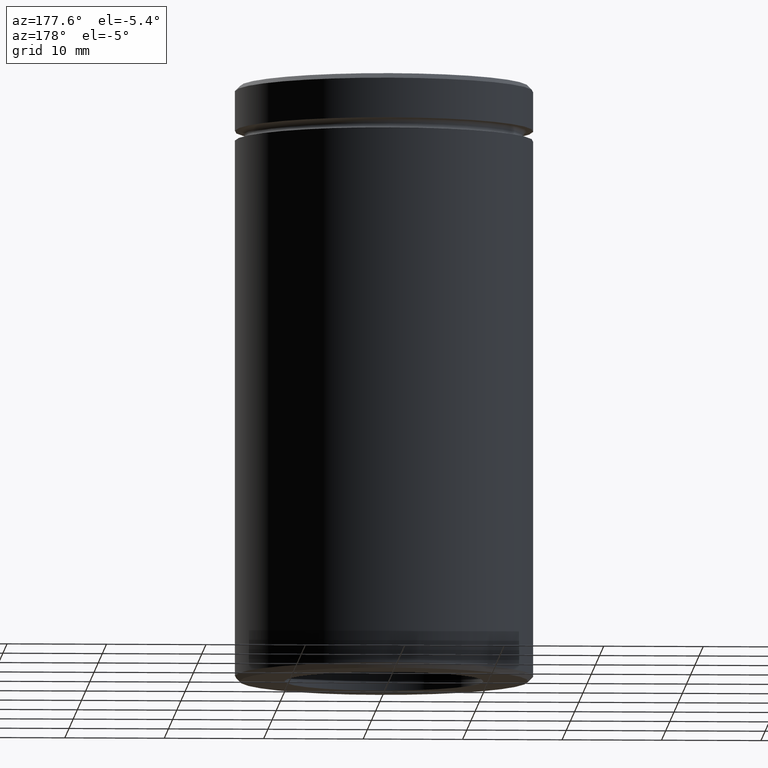
[diagram: clean part render]
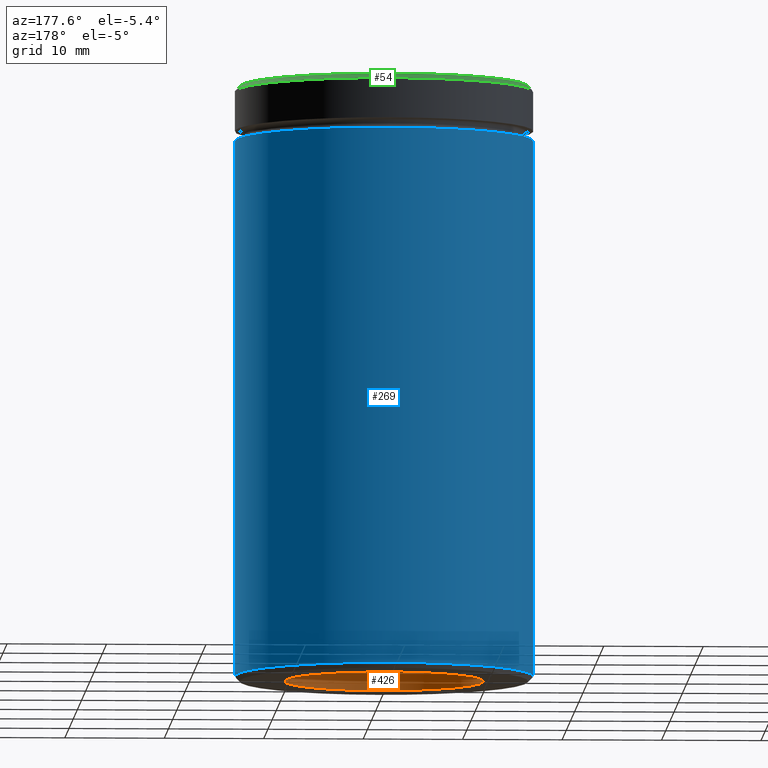
[diagram: same view with three faces highlighted in distinct colors, each labeled with its STEP entity id]
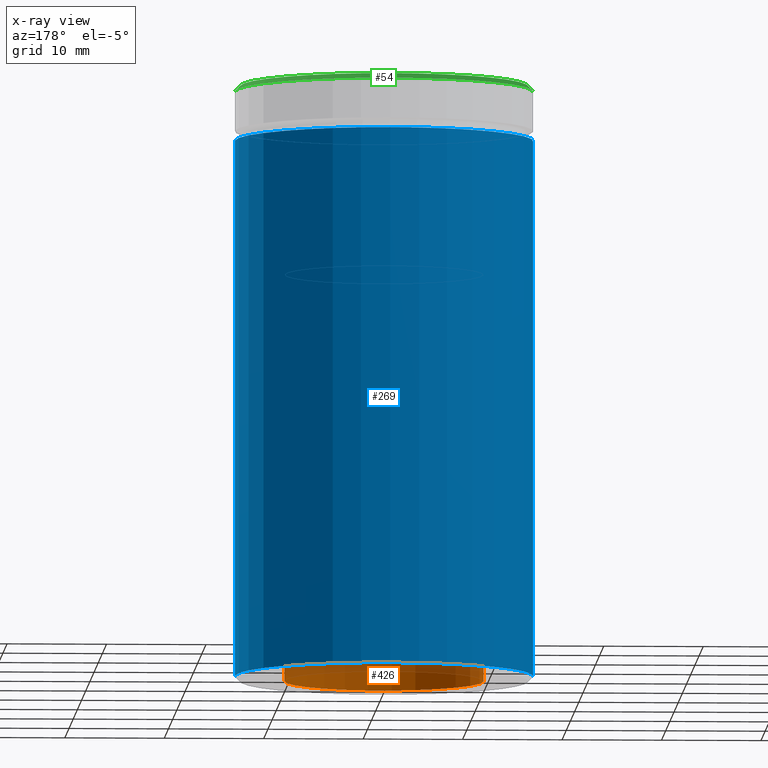
[diagram: x-ray of the same camera — body ghosted, the three highlighted faces saturated]
A machine part, auxiliary view with three faces highlighted in distinct colors.
The next image is the same camera in x-ray (body ghosted, the three faces saturated) — at least one of them is partly hidden behind the body in this view.
Their STEP definitions:

[orange] entity #426 — the highlighted cylindrical surface (partial cylindrical patch) has radius 10 mm, axis along (-0, -0, -1).
#10 = FACE_OUTER_BOUND ( 'NONE', #274, .T. ) ;
#11 = VERTEX_POINT ( 'NONE', #418 ) ;
#18 = CYLINDRICAL_SURFACE ( 'NONE', #407, 10.00000000000000000 ) ;
#29 = DIRECTION ( 'NONE',  ( -0.000000000000000000, -0.000000000000000000, -1.000000000000000000 ) ) ;
#33 = CIRCLE ( 'NONE', #134, 10.00000000000000000 ) ;
#58 = VERTEX_POINT ( 'NONE', #419 ) ;
#60 = CARTESIAN_POINT ( 'NONE',  ( 0.000000000000000000, 0.000000000000000000, -60.00000000000000000 ) ) ;
#84 = DIRECTION ( 'NONE',  ( 0.000000000000000000, 0.000000000000000000, -1.000000000000000000 ) ) ;
#94 = ORIENTED_EDGE ( 'NONE', *, *, #195, .F. ) ;
#96 = CIRCLE ( 'NONE', #413, 10.00000000000000000 ) ;
#97 = ORIENTED_EDGE ( 'NONE', *, *, #547, .T. ) ;
#99 = VECTOR ( 'NONE', #29, 1000.000000000000000 ) ;
#113 = VECTOR ( 'NONE', #257, 1000.000000000000000 ) ;
#116 = LINE ( 'NONE', #332, #99 ) ;
#134 = AXIS2_PLACEMENT_3D ( 'NONE', #60, #442, #321 ) ;
#142 = DIRECTION ( 'NONE',  ( -0.000000000000000000, -0.000000000000000000, -1.000000000000000000 ) ) ;
#190 = CARTESIAN_POINT ( 'NONE',  ( -10.00000000000000000, 0.000000000000000000, -60.00000000000000000 ) ) ;
#195 = EDGE_CURVE ( 'NONE', #11, #441, #96, .T. ) ;
#212 = EDGE_CURVE ( 'NONE', #441, #349, #521, .T. ) ;
#257 = DIRECTION ( 'NONE',  ( -0.000000000000000000, -0.000000000000000000, -1.000000000000000000 ) ) ;
#268 = CARTESIAN_POINT ( 'NONE',  ( 0.000000000000000000, 0.000000000000000000, -18.99999999999999645 ) ) ;
#274 = EDGE_LOOP ( 'NONE', ( #94, #97, #501, #511 ) ) ;
#315 = DIRECTION ( 'NONE',  ( -1.000000000000000000, 0.000000000000000000, 0.000000000000000000 ) ) ;
#321 = DIRECTION ( 'NONE',  ( -1.000000000000000000, 0.000000000000000000, 0.000000000000000000 ) ) ;
#332 = CARTESIAN_POINT ( 'NONE',  ( 10.00000000000000000, 1.224646799147353256E-15, -18.99999999999999645 ) ) ;
#349 = VERTEX_POINT ( 'NONE', #190 ) ;
#394 = DIRECTION ( 'NONE',  ( -1.000000000000000000, 0.000000000000000000, 0.000000000000000000 ) ) ;
#407 = AXIS2_PLACEMENT_3D ( 'NONE', #538, #142, #315 ) ;
#413 = AXIS2_PLACEMENT_3D ( 'NONE', #268, #84, #394 ) ;
#418 = CARTESIAN_POINT ( 'NONE',  ( 10.00000000000000000, 1.224646799147353256E-15, -18.99999999999999645 ) ) ;
#419 = CARTESIAN_POINT ( 'NONE',  ( 10.00000000000000000, 1.224646799147353256E-15, -60.00000000000000000 ) ) ;
#426 = ADVANCED_FACE ( 'NONE', ( #10 ), #18, .F. ) ;
#432 = EDGE_CURVE ( 'NONE', #58, #349, #33, .T. ) ;
#441 = VERTEX_POINT ( 'NONE', #548 ) ;
#442 = DIRECTION ( 'NONE',  ( 0.000000000000000000, 0.000000000000000000, -1.000000000000000000 ) ) ;
#484 = CARTESIAN_POINT ( 'NONE',  ( -10.00000000000000000, 0.000000000000000000, -18.99999999999999645 ) ) ;
#501 = ORIENTED_EDGE ( 'NONE', *, *, #432, .T. ) ;
#511 = ORIENTED_EDGE ( 'NONE', *, *, #212, .F. ) ;
#521 = LINE ( 'NONE', #484, #113 ) ;
#538 = CARTESIAN_POINT ( 'NONE',  ( 0.000000000000000000, 0.000000000000000000, -18.99999999999999645 ) ) ;
#547 = EDGE_CURVE ( 'NONE', #11, #58, #116, .T. ) ;
#548 = CARTESIAN_POINT ( 'NONE',  ( -10.00000000000000000, 0.000000000000000000, -18.99999999999999645 ) ) ;

[blue] entity #269 — the highlighted cylindrical surface (partial cylindrical patch) has radius 15 mm, axis along (-0, -0, 1).
#5 = ORIENTED_EDGE ( 'NONE', *, *, #19, .F. ) ;
#12 = CARTESIAN_POINT ( 'NONE',  ( 15.00000000000000000, 0.000000000000000000, 0.000000000000000000 ) ) ;
#19 = EDGE_CURVE ( 'NONE', #73, #292, #288, .T. ) ;
#21 = DIRECTION ( 'NONE',  ( -0.000000000000000000, -0.000000000000000000, 1.000000000000000000 ) ) ;
#25 = LINE ( 'NONE', #412, #228 ) ;
#28 = CARTESIAN_POINT ( 'NONE',  ( 0.000000000000000000, 0.000000000000000000, -5.500000000000000000 ) ) ;
#42 = AXIS2_PLACEMENT_3D ( 'NONE', #28, #559, #553 ) ;
#45 = VERTEX_POINT ( 'NONE', #156 ) ;
#52 = ORIENTED_EDGE ( 'NONE', *, *, #467, .F. ) ;
#53 = AXIS2_PLACEMENT_3D ( 'NONE', #235, #237, #410 ) ;
#73 = VERTEX_POINT ( 'NONE', #204 ) ;
#85 = FACE_OUTER_BOUND ( 'NONE', #98, .T. ) ;
#98 = EDGE_LOOP ( 'NONE', ( #366, #425, #5, #52 ) ) ;
#132 = CARTESIAN_POINT ( 'NONE',  ( -15.00000000000000000, 1.836970198721029589E-15, -5.500000000000000000 ) ) ;
#146 = EDGE_CURVE ( 'NONE', #45, #292, #25, .T. ) ;
#156 = CARTESIAN_POINT ( 'NONE',  ( -15.00000000000000000, 1.836970198721029589E-15, -59.49999999999998579 ) ) ;
#165 = VECTOR ( 'NONE', #191, 1000.000000000000000 ) ;
#191 = DIRECTION ( 'NONE',  ( -0.000000000000000000, -0.000000000000000000, 1.000000000000000000 ) ) ;
#202 = AXIS2_PLACEMENT_3D ( 'NONE', #307, #344, #346 ) ;
#204 = CARTESIAN_POINT ( 'NONE',  ( 15.00000000000000000, 0.000000000000000000, -5.500000000000000000 ) ) ;
#228 = VECTOR ( 'NONE', #21, 1000.000000000000000 ) ;
#235 = CARTESIAN_POINT ( 'NONE',  ( 0.000000000000000000, 0.000000000000000000, -59.49999999999998579 ) ) ;
#237 = DIRECTION ( 'NONE',  ( -0.000000000000000000, -0.000000000000000000, 1.000000000000000000 ) ) ;
#240 = CARTESIAN_POINT ( 'NONE',  ( 15.00000000000000000, 0.000000000000000000, -59.49999999999998579 ) ) ;
#269 = ADVANCED_FACE ( 'NONE', ( #85 ), #563, .T. ) ;
#288 = CIRCLE ( 'NONE', #42, 15.00000000000000000 ) ;
#292 = VERTEX_POINT ( 'NONE', #132 ) ;
#307 = CARTESIAN_POINT ( 'NONE',  ( 0.000000000000000000, 0.000000000000000000, 0.000000000000000000 ) ) ;
#330 = EDGE_CURVE ( 'NONE', #439, #45, #414, .T. ) ;
#344 = DIRECTION ( 'NONE',  ( -0.000000000000000000, -0.000000000000000000, 1.000000000000000000 ) ) ;
#346 = DIRECTION ( 'NONE',  ( 1.000000000000000000, 0.000000000000000000, 0.000000000000000000 ) ) ;
#366 = ORIENTED_EDGE ( 'NONE', *, *, #330, .T. ) ;
#403 = LINE ( 'NONE', #12, #165 ) ;
#410 = DIRECTION ( 'NONE',  ( -1.000000000000000000, 0.000000000000000000, 0.000000000000000000 ) ) ;
#412 = CARTESIAN_POINT ( 'NONE',  ( -15.00000000000000000, 1.836970198721029589E-15, 0.000000000000000000 ) ) ;
#414 = CIRCLE ( 'NONE', #53, 15.00000000000000000 ) ;
#425 = ORIENTED_EDGE ( 'NONE', *, *, #146, .T. ) ;
#439 = VERTEX_POINT ( 'NONE', #240 ) ;
#467 = EDGE_CURVE ( 'NONE', #439, #73, #403, .T. ) ;
#553 = DIRECTION ( 'NONE',  ( 1.000000000000000000, 0.000000000000000000, 0.000000000000000000 ) ) ;
#559 = DIRECTION ( 'NONE',  ( -0.000000000000000000, -0.000000000000000000, 1.000000000000000000 ) ) ;
#563 = CYLINDRICAL_SURFACE ( 'NONE', #202, 15.00000000000000000 ) ;

[green] entity #54 — the highlighted conical surface has half-angle 45 deg.
#38 = CARTESIAN_POINT ( 'NONE',  ( -15.00000000000000000, 1.836970198721029589E-15, -0.5000000000000038858 ) ) ;
#54 = ADVANCED_FACE ( 'NONE', ( #251 ), #238, .T. ) ;
#55 = CARTESIAN_POINT ( 'NONE',  ( 14.50000000000000355, 1.806354028742346196E-15, 0.000000000000000000 ) ) ;
#64 = DIRECTION ( 'NONE',  ( 1.000000000000000000, 0.000000000000000000, 0.000000000000000000 ) ) ;
#105 = LINE ( 'NONE', #198, #151 ) ;
#138 = EDGE_CURVE ( 'NONE', #167, #544, #341, .T. ) ;
#147 = ORIENTED_EDGE ( 'NONE', *, *, #532, .F. ) ;
#151 = VECTOR ( 'NONE', #535, 1000.000000000000000 ) ;
#158 = DIRECTION ( 'NONE',  ( 0.7071067811865414665, 8.659560562354858902E-17, -0.7071067811865536790 ) ) ;
#160 = DIRECTION ( 'NONE',  ( -0.000000000000000000, -0.000000000000000000, 1.000000000000000000 ) ) ;
#164 = DIRECTION ( 'NONE',  ( 1.000000000000000000, 0.000000000000000000, 0.000000000000000000 ) ) ;
#167 = VERTEX_POINT ( 'NONE', #38 ) ;
#198 = CARTESIAN_POINT ( 'NONE',  ( -14.50000000000000355, 0.000000000000000000, 0.000000000000000000 ) ) ;
#238 = CONICAL_SURFACE ( 'NONE', #263, 14.50000000000000355, 0.7853981633974396193 ) ;
#239 = AXIS2_PLACEMENT_3D ( 'NONE', #554, #160, #64 ) ;
#248 = ORIENTED_EDGE ( 'NONE', *, *, #138, .F. ) ;
#251 = FACE_OUTER_BOUND ( 'NONE', #404, .T. ) ;
#263 = AXIS2_PLACEMENT_3D ( 'NONE', #420, #338, #505 ) ;
#277 = CARTESIAN_POINT ( 'NONE',  ( -14.50000000000000355, 0.000000000000000000, 0.000000000000000000 ) ) ;
#290 = LINE ( 'NONE', #504, #549 ) ;
#298 = DIRECTION ( 'NONE',  ( 0.000000000000000000, 0.000000000000000000, -1.000000000000000000 ) ) ;
#338 = DIRECTION ( 'NONE',  ( 0.000000000000000000, 0.000000000000000000, -1.000000000000000000 ) ) ;
#341 = CIRCLE ( 'NONE', #528, 15.00000000000000000 ) ;
#347 = EDGE_CURVE ( 'NONE', #469, #167, #105, .T. ) ;
#377 = VERTEX_POINT ( 'NONE', #55 ) ;
#404 = EDGE_LOOP ( 'NONE', ( #147, #421, #248, #455 ) ) ;
#420 = CARTESIAN_POINT ( 'NONE',  ( 0.000000000000000000, 0.000000000000000000, 0.000000000000000000 ) ) ;
#421 = ORIENTED_EDGE ( 'NONE', *, *, #541, .T. ) ;
#443 = CIRCLE ( 'NONE', #239, 14.50000000000000355 ) ;
#455 = ORIENTED_EDGE ( 'NONE', *, *, #347, .F. ) ;
#469 = VERTEX_POINT ( 'NONE', #277 ) ;
#504 = CARTESIAN_POINT ( 'NONE',  ( 14.50000000000000355, 1.775737858763662804E-15, 0.000000000000000000 ) ) ;
#505 = DIRECTION ( 'NONE',  ( -1.000000000000000000, 0.000000000000000000, 0.000000000000000000 ) ) ;
#528 = AXIS2_PLACEMENT_3D ( 'NONE', #555, #298, #164 ) ;
#532 = EDGE_CURVE ( 'NONE', #377, #469, #443, .T. ) ;
#535 = DIRECTION ( 'NONE',  ( -0.7071067811865414665, 0.000000000000000000, -0.7071067811865536790 ) ) ;
#541 = EDGE_CURVE ( 'NONE', #377, #544, #290, .T. ) ;
#544 = VERTEX_POINT ( 'NONE', #558 ) ;
#549 = VECTOR ( 'NONE', #158, 1000.000000000000000 ) ;
#554 = CARTESIAN_POINT ( 'NONE',  ( 0.000000000000000000, 0.000000000000000000, 0.000000000000000000 ) ) ;
#555 = CARTESIAN_POINT ( 'NONE',  ( 0.000000000000000000, 0.000000000000000000, -0.5000000000000038858 ) ) ;
#558 = CARTESIAN_POINT ( 'NONE',  ( 15.00000000000000000, 0.000000000000000000, -0.5000000000000038858 ) ) ;